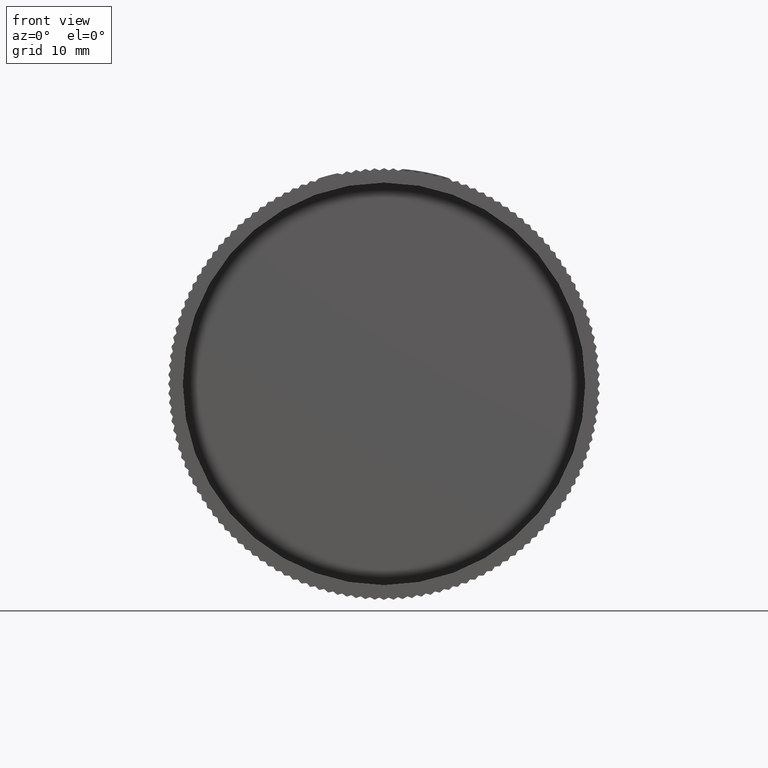
[diagram: clean part render]
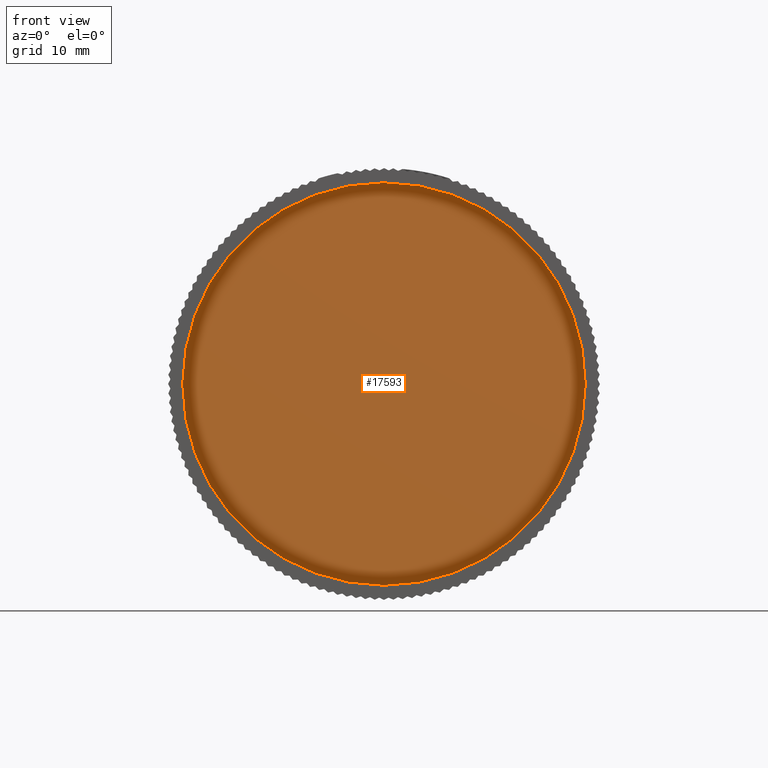
[diagram: same view with one face highlighted and labeled with its STEP entity id]
A machine part, front view. The second image highlights one B-rep face of the part: STEP entity #17593.
In plain terms, the highlighted planar face has unit normal (0, -1, 0).
Its self-contained STEP definition (entity closure, byte-faithful):
#126 = CARTESIAN_POINT ( 'NONE',  ( 0.0000000000000000000, 0.3779527559055118600, 0.0000000000000000000 ) ) ;
#929 = CARTESIAN_POINT ( 'NONE',  ( 0.0000000000000000000, 0.3779527559055118600, 0.0000000000000000000 ) ) ;
#4091 = DIRECTION ( 'NONE',  ( 0.0000000000000000000, 0.0000000000000000000, -1.000000000000000000 ) ) ;
#4890 = DIRECTION ( 'NONE',  ( 0.0000000000000000000, 0.0000000000000000000, -1.000000000000000000 ) ) ;
#7400 = EDGE_LOOP ( 'NONE', ( #38318, #17270 ) ) ;
#9159 = PLANE ( 'NONE',  #38375 ) ;
#10789 = AXIS2_PLACEMENT_3D ( 'NONE', #929, #28111, #4890 ) ;
#15524 = CARTESIAN_POINT ( 'NONE',  ( 1.576612217799939400E-016, 0.3779527559055118600, 1.287401574803150000 ) ) ;
#16995 = DIRECTION ( 'NONE',  ( 0.0000000000000000000, -0.0000000000000000000, -1.000000000000000000 ) ) ;
#17270 = ORIENTED_EDGE ( 'NONE', *, *, #27000, .T. ) ;
#17593 = ADVANCED_FACE ( 'NONE', ( #38302 ), #9159, .T. ) ;
#19254 = EDGE_CURVE ( 'NONE', #45541, #47159, #46152, .T. ) ;
#21220 = CIRCLE ( 'NONE', #33923, 1.287401574803150000 ) ;
#27000 = EDGE_CURVE ( 'NONE', #47159, #45541, #21220, .T. ) ;
#27331 = DIRECTION ( 'NONE',  ( 0.0000000000000000000, -1.000000000000000000, 0.0000000000000000000 ) ) ;
#28111 = DIRECTION ( 'NONE',  ( 0.0000000000000000000, -1.000000000000000000, 0.0000000000000000000 ) ) ;
#32100 = CARTESIAN_POINT ( 'NONE',  ( 0.0000000000000000000, 0.3779527559055118600, -1.287401574803150000 ) ) ;
#33923 = AXIS2_PLACEMENT_3D ( 'NONE', #126, #27331, #4091 ) ;
#36274 = CARTESIAN_POINT ( 'NONE',  ( 1.240649606299212900, 0.3779527559055118600, 0.0000000000000000000 ) ) ;
#38302 = FACE_OUTER_BOUND ( 'NONE', #7400, .T. ) ;
#38318 = ORIENTED_EDGE ( 'NONE', *, *, #19254, .T. ) ;
#38375 = AXIS2_PLACEMENT_3D ( 'NONE', #36274, #40151, #16995 ) ;
#40151 = DIRECTION ( 'NONE',  ( 0.0000000000000000000, -1.000000000000000000, 0.0000000000000000000 ) ) ;
#45541 = VERTEX_POINT ( 'NONE', #32100 ) ;
#46152 = CIRCLE ( 'NONE', #10789, 1.287401574803150000 ) ;
#47159 = VERTEX_POINT ( 'NONE', #15524 ) ;